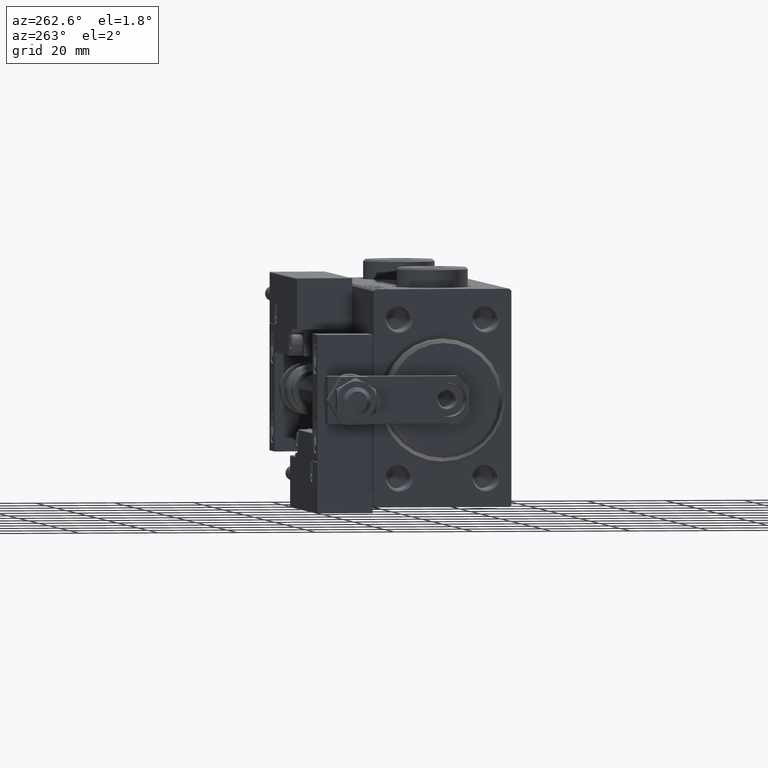
[diagram: clean part render]
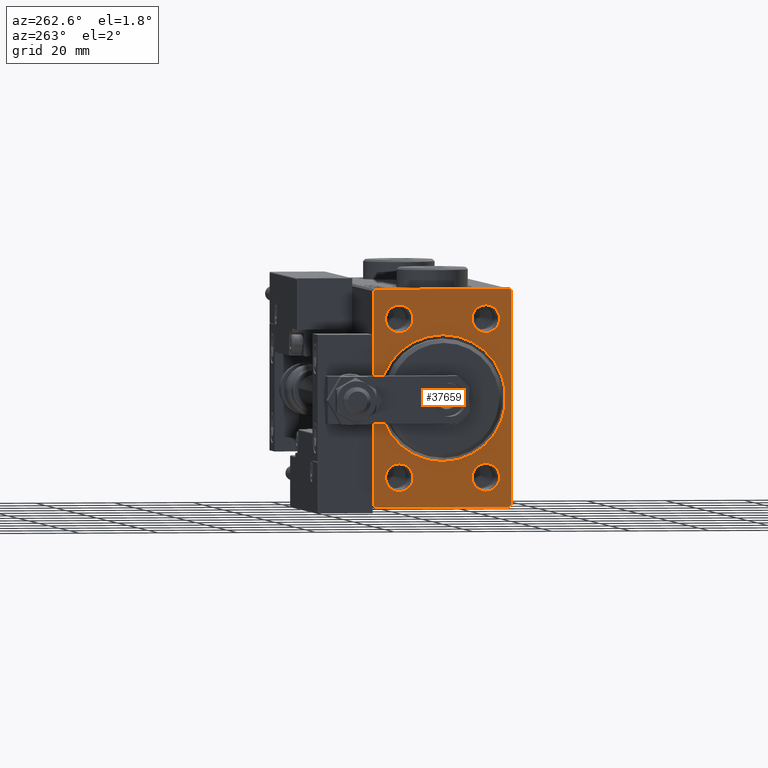
[diagram: same view with one face highlighted and labeled with its STEP entity id]
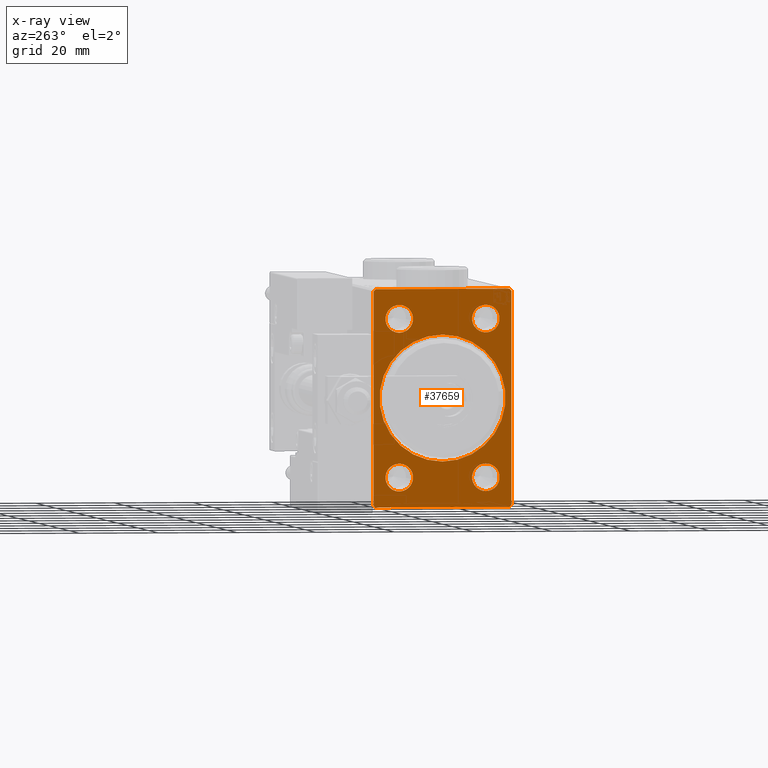
[diagram: x-ray of the same camera — body ghosted, the highlighted face saturated]
A machine part, auxiliary view. The second image highlights one B-rep face of the part: STEP entity #37659.
The next image is the same camera in x-ray: the body ghosted, the highlighted face saturated — about 0% of this face is hidden behind the body in this view.
In plain terms, the highlighted planar face has unit normal (1, 0, 0).
Its self-contained STEP definition (entity closure, byte-faithful):
#76 = EDGE_CURVE ( 'NONE', #18492, #35309, #37780, .T. ) ;
#669 = CARTESIAN_POINT ( 'NONE',  ( 0.000000000000000000, 0.000000000000000000, 16.00000000000002842 ) ) ;
#1041 = ORIENTED_EDGE ( 'NONE', *, *, #51319, .F. ) ;
#1082 = EDGE_LOOP ( 'NONE', ( #37628, #16220 ) ) ;
#1170 = LINE ( 'NONE', #49251, #27872 ) ;
#1958 = DIRECTION ( 'NONE',  ( 1.000000000000000000, 0.000000000000000000, 0.000000000000000000 ) ) ;
#2139 = DIRECTION ( 'NONE',  ( 1.000000000000000000, 0.000000000000000000, 0.000000000000000000 ) ) ;
#2222 = CARTESIAN_POINT ( 'NONE',  ( 0.000000000000000000, -11.00000000000000533, 20.00000000000000711 ) ) ;
#2622 = FACE_BOUND ( 'NONE', #50548, .T. ) ;
#2784 = CARTESIAN_POINT ( 'NONE',  ( 0.000000000000000000, 11.00000000000000178, -16.50000000000001066 ) ) ;
#2883 = PLANE ( 'NONE',  #17828 ) ;
#2993 = CIRCLE ( 'NONE', #23236, 3.499999999999989342 ) ;
#3294 = LINE ( 'NONE', #19484, #22935 ) ;
#3815 = VECTOR ( 'NONE', #50527, 1000.000000000000000 ) ;
#4473 = EDGE_LOOP ( 'NONE', ( #13785, #45415 ) ) ;
#4562 = CARTESIAN_POINT ( 'NONE',  ( 0.000000000000000000, -16.99999999999997868, 27.49999999999998579 ) ) ;
#5059 = CARTESIAN_POINT ( 'NONE',  ( 0.000000000000000000, 11.00000000000000178, -20.00000000000000000 ) ) ;
#6560 = CARTESIAN_POINT ( 'NONE',  ( 0.000000000000000000, 17.50000000000000000, 27.00000000000001066 ) ) ;
#6716 = LINE ( 'NONE', #14416, #3815 ) ;
#6858 = EDGE_LOOP ( 'NONE', ( #31864, #42962 ) ) ;
#7156 = CARTESIAN_POINT ( 'NONE',  ( 0.000000000000000000, -11.00000000000000533, -16.50000000000001066 ) ) ;
#7422 = ORIENTED_EDGE ( 'NONE', *, *, #7497, .T. ) ;
#7497 = EDGE_CURVE ( 'NONE', #21739, #18773, #1170, .T. ) ;
#7736 = DIRECTION ( 'NONE',  ( 1.000000000000000000, 0.000000000000000000, 0.000000000000000000 ) ) ;
#7763 = CARTESIAN_POINT ( 'NONE',  ( 0.000000000000000000, 11.00000000000000178, 16.50000000000001776 ) ) ;
#7771 = VECTOR ( 'NONE', #35772, 1000.000000000000000 ) ;
#7790 = VERTEX_POINT ( 'NONE', #41518 ) ;
#7880 = VERTEX_POINT ( 'NONE', #7763 ) ;
#8370 = ORIENTED_EDGE ( 'NONE', *, *, #23824, .T. ) ;
#8773 = CARTESIAN_POINT ( 'NONE',  ( 0.000000000000000000, -17.49999999999999645, 26.99999999999997158 ) ) ;
#8843 = CARTESIAN_POINT ( 'NONE',  ( 0.000000000000000000, 11.00000000000000178, 23.49999999999999645 ) ) ;
#9155 = DIRECTION ( 'NONE',  ( -0.000000000000000000, 0.7071067811865474617, 0.7071067811865474617 ) ) ;
#9864 = DIRECTION ( 'NONE',  ( 1.000000000000000000, 0.000000000000000000, 0.000000000000000000 ) ) ;
#9897 = ORIENTED_EDGE ( 'NONE', *, *, #13376, .T. ) ;
#10026 = CARTESIAN_POINT ( 'NONE',  ( 0.000000000000000000, 17.50000000000000711, -27.50000000000001066 ) ) ;
#10453 = DIRECTION ( 'NONE',  ( 1.000000000000000000, 0.000000000000000000, 0.000000000000000000 ) ) ;
#11039 = DIRECTION ( 'NONE',  ( 0.000000000000000000, 0.000000000000000000, -1.000000000000000000 ) ) ;
#11118 = AXIS2_PLACEMENT_3D ( 'NONE', #22612, #9864, #50226 ) ;
#11311 = ORIENTED_EDGE ( 'NONE', *, *, #76, .T. ) ;
#11868 = CIRCLE ( 'NONE', #13524, 3.499999999999989342 ) ;
#12614 = VERTEX_POINT ( 'NONE', #2784 ) ;
#13097 = AXIS2_PLACEMENT_3D ( 'NONE', #5059, #30038, #37992 ) ;
#13376 = EDGE_CURVE ( 'NONE', #33324, #18193, #42989, .T. ) ;
#13524 = AXIS2_PLACEMENT_3D ( 'NONE', #18802, #31568, #35279 ) ;
#13785 = ORIENTED_EDGE ( 'NONE', *, *, #38817, .T. ) ;
#14252 = DIRECTION ( 'NONE',  ( 0.000000000000000000, 0.000000000000000000, -1.000000000000000000 ) ) ;
#14416 = CARTESIAN_POINT ( 'NONE',  ( 0.000000000000000000, 17.50000000000000000, 27.49999999999999289 ) ) ;
#14791 = DIRECTION ( 'NONE',  ( 0.000000000000000000, -1.261617073437677752E-16, 1.000000000000000000 ) ) ;
#15321 = VERTEX_POINT ( 'NONE', #50173 ) ;
#16220 = ORIENTED_EDGE ( 'NONE', *, *, #19917, .T. ) ;
#17372 = ORIENTED_EDGE ( 'NONE', *, *, #22143, .F. ) ;
#17810 = DIRECTION ( 'NONE',  ( 0.000000000000000000, -0.7071067811865474617, -0.7071067811865474617 ) ) ;
#17828 = AXIS2_PLACEMENT_3D ( 'NONE', #43247, #35283, #43508 ) ;
#18193 = VERTEX_POINT ( 'NONE', #42116 ) ;
#18205 = VECTOR ( 'NONE', #22638, 1000.000000000000114 ) ;
#18209 = CIRCLE ( 'NONE', #39413, 3.499999999999989342 ) ;
#18317 = CARTESIAN_POINT ( 'NONE',  ( 0.000000000000000000, 11.00000000000000178, 20.00000000000000711 ) ) ;
#18492 = VERTEX_POINT ( 'NONE', #33311 ) ;
#18534 = EDGE_CURVE ( 'NONE', #39618, #20600, #49126, .T. ) ;
#18644 = EDGE_CURVE ( 'NONE', #18193, #33324, #48254, .T. ) ;
#18729 = DIRECTION ( 'NONE',  ( 1.000000000000000000, 0.000000000000000000, 0.000000000000000000 ) ) ;
#18773 = VERTEX_POINT ( 'NONE', #4562 ) ;
#18802 = CARTESIAN_POINT ( 'NONE',  ( 0.000000000000000000, -11.00000000000000533, -20.00000000000000000 ) ) ;
#19484 = CARTESIAN_POINT ( 'NONE',  ( 0.000000000000000000, -17.49999999999999645, 27.49999999999998579 ) ) ;
#19917 = EDGE_CURVE ( 'NONE', #15321, #22785, #11868, .T. ) ;
#20600 = VERTEX_POINT ( 'NONE', #48847 ) ;
#21353 = ORIENTED_EDGE ( 'NONE', *, *, #30181, .T. ) ;
#21739 = VERTEX_POINT ( 'NONE', #8773 ) ;
#21887 = VERTEX_POINT ( 'NONE', #30990 ) ;
#22143 = EDGE_CURVE ( 'NONE', #21739, #22384, #3294, .T. ) ;
#22279 = FACE_BOUND ( 'NONE', #29268, .T. ) ;
#22384 = VERTEX_POINT ( 'NONE', #51285 ) ;
#22612 = CARTESIAN_POINT ( 'NONE',  ( 0.000000000000000000, 11.00000000000000178, 20.00000000000000711 ) ) ;
#22638 = DIRECTION ( 'NONE',  ( -0.000000000000000000, 0.7071067811865500152, -0.7071067811865451302 ) ) ;
#22769 = LINE ( 'NONE', #10026, #37706 ) ;
#22785 = VERTEX_POINT ( 'NONE', #7156 ) ;
#22935 = VECTOR ( 'NONE', #52389, 1000.000000000000000 ) ;
#23236 = AXIS2_PLACEMENT_3D ( 'NONE', #39188, #18729, #11039 ) ;
#23337 = FACE_BOUND ( 'NONE', #1082, .T. ) ;
#23428 = DIRECTION ( 'NONE',  ( 1.000000000000000000, 0.000000000000000000, 0.000000000000000000 ) ) ;
#23824 = EDGE_CURVE ( 'NONE', #47826, #22384, #51699, .T. ) ;
#24055 = EDGE_CURVE ( 'NONE', #47826, #51905, #37330, .T. ) ;
#24349 = AXIS2_PLACEMENT_3D ( 'NONE', #34167, #50624, #14252 ) ;
#24468 = CARTESIAN_POINT ( 'NONE',  ( 0.000000000000000000, -11.00000000000000533, 20.00000000000000711 ) ) ;
#27068 = FACE_OUTER_BOUND ( 'NONE', #52142, .T. ) ;
#27301 = CARTESIAN_POINT ( 'NONE',  ( 0.000000000000000000, -17.00000000000000711, -27.50000000000000711 ) ) ;
#27872 = VECTOR ( 'NONE', #9155, 1000.000000000000114 ) ;
#29268 = EDGE_LOOP ( 'NONE', ( #39978, #33015 ) ) ;
#29638 = CARTESIAN_POINT ( 'NONE',  ( 0.000000000000000000, -17.49999999999999645, -27.50000000000000711 ) ) ;
#29900 = DIRECTION ( 'NONE',  ( 0.000000000000000000, 1.000000000000000000, -9.912705577010325549E-17 ) ) ;
#30038 = DIRECTION ( 'NONE',  ( 1.000000000000000000, 0.000000000000000000, 0.000000000000000000 ) ) ;
#30181 = EDGE_CURVE ( 'NONE', #21887, #51905, #45713, .T. ) ;
#30601 = CIRCLE ( 'NONE', #11118, 3.499999999999989342 ) ;
#30860 = AXIS2_PLACEMENT_3D ( 'NONE', #24468, #7736, #36415 ) ;
#30907 = DIRECTION ( 'NONE',  ( 0.000000000000000000, 0.000000000000000000, -1.000000000000000000 ) ) ;
#30933 = CIRCLE ( 'NONE', #13097, 3.499999999999989342 ) ;
#30990 = CARTESIAN_POINT ( 'NONE',  ( 0.000000000000000000, 17.50000000000000711, -26.99999999999998224 ) ) ;
#31328 = AXIS2_PLACEMENT_3D ( 'NONE', #2222, #1958, #49494 ) ;
#31568 = DIRECTION ( 'NONE',  ( 1.000000000000000000, 0.000000000000000000, 0.000000000000000000 ) ) ;
#31864 = ORIENTED_EDGE ( 'NONE', *, *, #34470, .T. ) ;
#32166 = AXIS2_PLACEMENT_3D ( 'NONE', #51063, #10453, #30907 ) ;
#32400 = EDGE_CURVE ( 'NONE', #20600, #39618, #40178, .T. ) ;
#33015 = ORIENTED_EDGE ( 'NONE', *, *, #32400, .T. ) ;
#33311 = CARTESIAN_POINT ( 'NONE',  ( 0.000000000000000000, 17.00000000000001421, 27.49999999999999289 ) ) ;
#33324 = VERTEX_POINT ( 'NONE', #669 ) ;
#34167 = CARTESIAN_POINT ( 'NONE',  ( 0.000000000000000000, 0.000000000000000000, 0.000000000000000000 ) ) ;
#34470 = EDGE_CURVE ( 'NONE', #12614, #7790, #18209, .T. ) ;
#34593 = CARTESIAN_POINT ( 'NONE',  ( 0.000000000000000000, 17.00000000000001421, 27.49999999999999289 ) ) ;
#34794 = DIRECTION ( 'NONE',  ( 0.000000000000000000, 0.000000000000000000, -1.000000000000000000 ) ) ;
#35279 = DIRECTION ( 'NONE',  ( 0.000000000000000000, 0.000000000000000000, -1.000000000000000000 ) ) ;
#35283 = DIRECTION ( 'NONE',  ( 1.000000000000000000, 0.000000000000000000, 0.000000000000000000 ) ) ;
#35309 = VERTEX_POINT ( 'NONE', #6560 ) ;
#35372 = CARTESIAN_POINT ( 'NONE',  ( 0.000000000000000000, 11.00000000000000178, -20.00000000000000000 ) ) ;
#35772 = DIRECTION ( 'NONE',  ( -0.000000000000000000, -0.7071067811865378028, 0.7071067811865573427 ) ) ;
#36164 = ORIENTED_EDGE ( 'NONE', *, *, #24055, .F. ) ;
#36415 = DIRECTION ( 'NONE',  ( 0.000000000000000000, 0.000000000000000000, -1.000000000000000000 ) ) ;
#36725 = CARTESIAN_POINT ( 'NONE',  ( 0.000000000000000000, -11.00000000000000533, 23.49999999999999645 ) ) ;
#37330 = LINE ( 'NONE', #29638, #44229 ) ;
#37628 = ORIENTED_EDGE ( 'NONE', *, *, #49213, .T. ) ;
#37659 = ADVANCED_FACE ( 'NONE', ( #2622, #23337, #22279, #39264, #38480, #27068 ), #2883, .F. ) ;
#37706 = VECTOR ( 'NONE', #14791, 1000.000000000000000 ) ;
#37780 = LINE ( 'NONE', #34593, #18205 ) ;
#37992 = DIRECTION ( 'NONE',  ( 0.000000000000000000, 0.000000000000000000, -1.000000000000000000 ) ) ;
#38480 = FACE_BOUND ( 'NONE', #6858, .T. ) ;
#38817 = EDGE_CURVE ( 'NONE', #40962, #7880, #30601, .T. ) ;
#39188 = CARTESIAN_POINT ( 'NONE',  ( 0.000000000000000000, -11.00000000000000533, -20.00000000000000000 ) ) ;
#39264 = FACE_BOUND ( 'NONE', #4473, .T. ) ;
#39413 = AXIS2_PLACEMENT_3D ( 'NONE', #35372, #23428, #47827 ) ;
#39618 = VERTEX_POINT ( 'NONE', #36725 ) ;
#39978 = ORIENTED_EDGE ( 'NONE', *, *, #18534, .T. ) ;
#40178 = CIRCLE ( 'NONE', #30860, 3.499999999999989342 ) ;
#40403 = ORIENTED_EDGE ( 'NONE', *, *, #18644, .T. ) ;
#40692 = CARTESIAN_POINT ( 'NONE',  ( 0.000000000000000000, -17.00000000000000711, -27.50000000000000711 ) ) ;
#40910 = CIRCLE ( 'NONE', #47678, 3.499999999999989342 ) ;
#40962 = VERTEX_POINT ( 'NONE', #8843 ) ;
#41518 = CARTESIAN_POINT ( 'NONE',  ( 0.000000000000000000, 11.00000000000000178, -23.49999999999998934 ) ) ;
#42116 = CARTESIAN_POINT ( 'NONE',  ( 0.000000000000000000, 1.959434878635768681E-15, -16.00000000000002842 ) ) ;
#42378 = EDGE_CURVE ( 'NONE', #7880, #40962, #40910, .T. ) ;
#42962 = ORIENTED_EDGE ( 'NONE', *, *, #47068, .T. ) ;
#42989 = CIRCLE ( 'NONE', #24349, 16.00000000000002842 ) ;
#43247 = CARTESIAN_POINT ( 'NONE',  ( 0.000000000000000000, 0.000000000000000000, 0.000000000000000000 ) ) ;
#43508 = DIRECTION ( 'NONE',  ( 0.000000000000000000, 0.000000000000000000, -1.000000000000000000 ) ) ;
#44229 = VECTOR ( 'NONE', #29900, 1000.000000000000000 ) ;
#44339 = VECTOR ( 'NONE', #17810, 1000.000000000000114 ) ;
#44794 = ORIENTED_EDGE ( 'NONE', *, *, #48663, .F. ) ;
#45415 = ORIENTED_EDGE ( 'NONE', *, *, #42378, .T. ) ;
#45713 = LINE ( 'NONE', #49959, #44339 ) ;
#47068 = EDGE_CURVE ( 'NONE', #7790, #12614, #30933, .T. ) ;
#47678 = AXIS2_PLACEMENT_3D ( 'NONE', #18317, #2139, #34794 ) ;
#47826 = VERTEX_POINT ( 'NONE', #40692 ) ;
#47827 = DIRECTION ( 'NONE',  ( 0.000000000000000000, 0.000000000000000000, -1.000000000000000000 ) ) ;
#48254 = CIRCLE ( 'NONE', #32166, 16.00000000000002842 ) ;
#48663 = EDGE_CURVE ( 'NONE', #18492, #18773, #6716, .T. ) ;
#48847 = CARTESIAN_POINT ( 'NONE',  ( 0.000000000000000000, -11.00000000000000533, 16.50000000000001776 ) ) ;
#49126 = CIRCLE ( 'NONE', #31328, 3.499999999999989342 ) ;
#49205 = CARTESIAN_POINT ( 'NONE',  ( 0.000000000000000000, 16.99999999999997868, -27.50000000000001066 ) ) ;
#49213 = EDGE_CURVE ( 'NONE', #22785, #15321, #2993, .T. ) ;
#49251 = CARTESIAN_POINT ( 'NONE',  ( 0.000000000000000000, -17.49999999999999645, 26.99999999999997158 ) ) ;
#49494 = DIRECTION ( 'NONE',  ( 0.000000000000000000, 0.000000000000000000, -1.000000000000000000 ) ) ;
#49959 = CARTESIAN_POINT ( 'NONE',  ( 0.000000000000000000, 17.50000000000000711, -26.99999999999998224 ) ) ;
#50173 = CARTESIAN_POINT ( 'NONE',  ( 0.000000000000000000, -11.00000000000000533, -23.49999999999998934 ) ) ;
#50226 = DIRECTION ( 'NONE',  ( 0.000000000000000000, 0.000000000000000000, -1.000000000000000000 ) ) ;
#50527 = DIRECTION ( 'NONE',  ( 0.000000000000000000, -1.000000000000000000, -1.982541115402065356E-16 ) ) ;
#50548 = EDGE_LOOP ( 'NONE', ( #9897, #40403 ) ) ;
#50624 = DIRECTION ( 'NONE',  ( 1.000000000000000000, 0.000000000000000000, 0.000000000000000000 ) ) ;
#51063 = CARTESIAN_POINT ( 'NONE',  ( 0.000000000000000000, 0.000000000000000000, 0.000000000000000000 ) ) ;
#51285 = CARTESIAN_POINT ( 'NONE',  ( 0.000000000000000000, -17.49999999999999645, -27.00000000000000711 ) ) ;
#51319 = EDGE_CURVE ( 'NONE', #21887, #35309, #22769, .T. ) ;
#51699 = LINE ( 'NONE', #27301, #7771 ) ;
#51905 = VERTEX_POINT ( 'NONE', #49205 ) ;
#52142 = EDGE_LOOP ( 'NONE', ( #17372, #7422, #44794, #11311, #1041, #21353, #36164, #8370 ) ) ;
#52389 = DIRECTION ( 'NONE',  ( 0.000000000000000000, 0.000000000000000000, -1.000000000000000000 ) ) ;